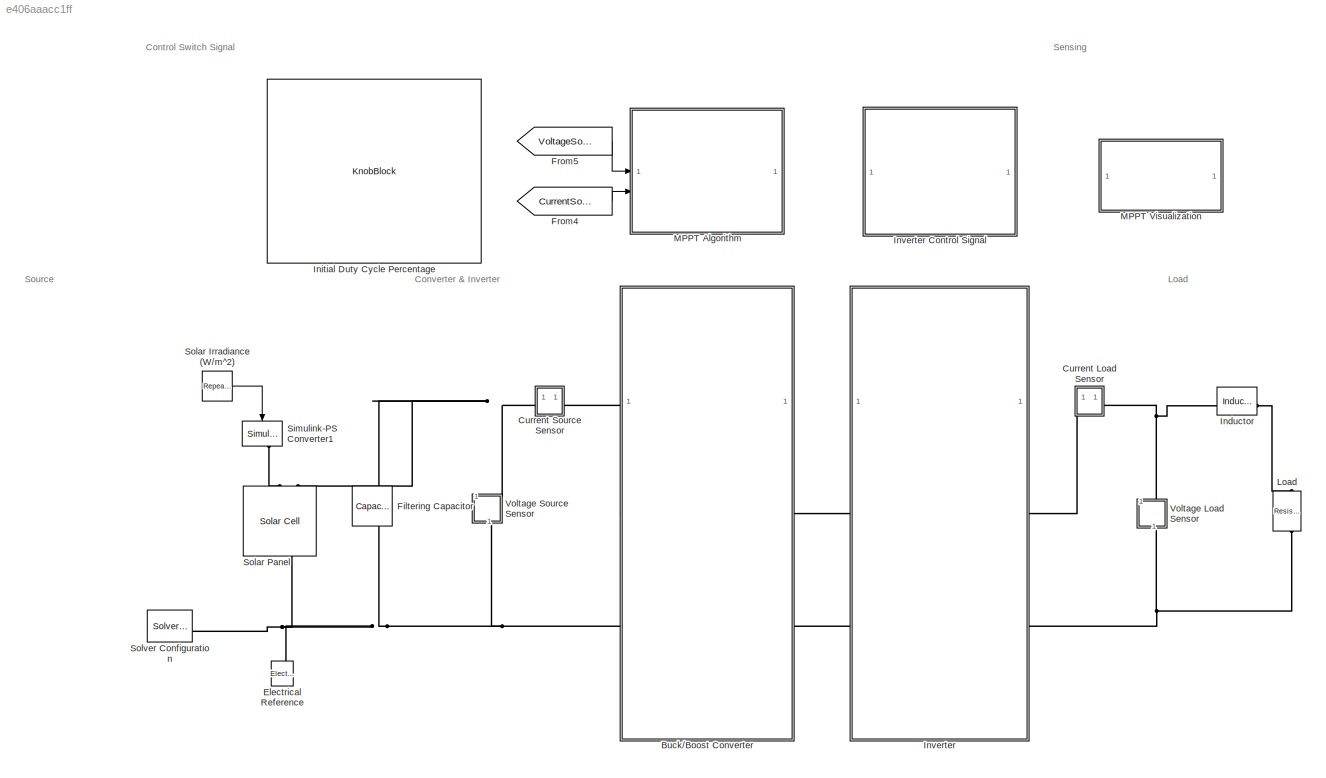
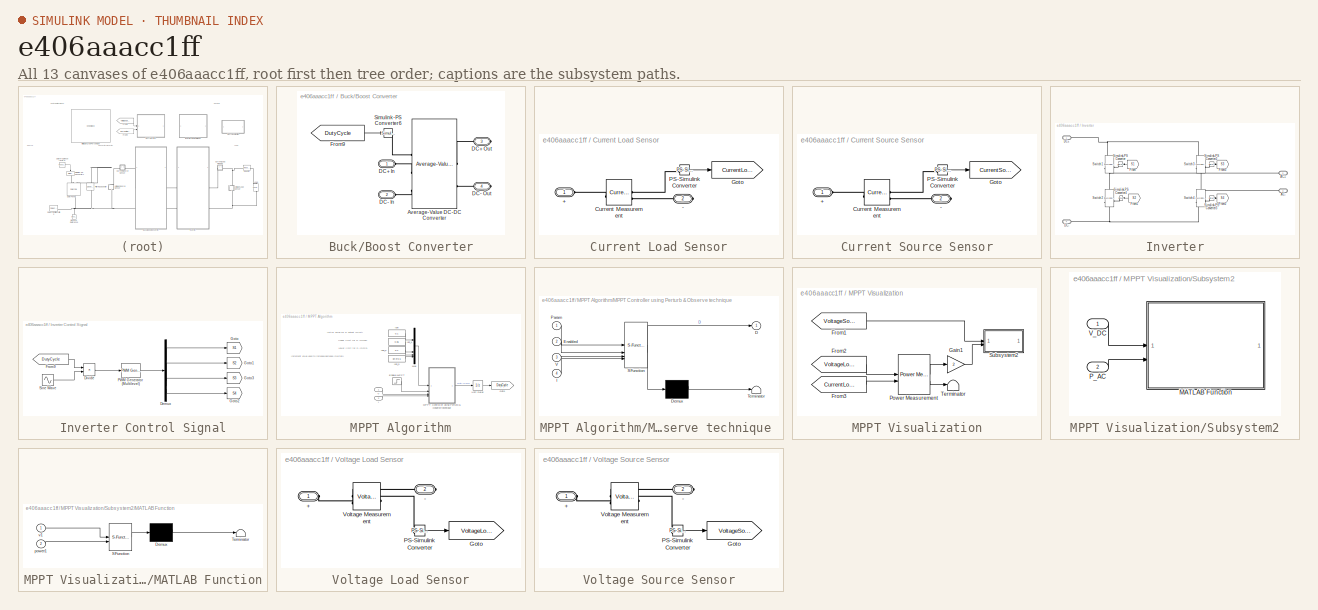
[diagram: thumbnail index - all 13 canvases of the model, root first then tree order]
MODEL slx_e406aaacc1ff
KIND model
CONFIG AbsTol = auto
CONFIG EnableMultiTasking = off
CONFIG FixedStep = auto
CONFIG MaxStep = auto
CONFIG MinStep = auto
CONFIG PreLoadFcn = addpath(genpath('Data'));
CONFIG RelTol = 1e-3
CONFIG SampleTimeConstraint = Unconstrained
CONFIG SolverName = ode23t
CONFIG StartTime = 0.0
CONFIG StopTime = 0.1
BLOCK [SubSystem] Buck//Boost Converter
BLOCK [Reference] Buck//Boost Converter/Average-Value DC-DC Converter  REF=ee_lib/Semiconductors &
Converters/Converters/Average-Value DC-DC
Converter
  SourceBlock = ee_lib/Semiconductors &\nConverters/Converters/Average-Value DC-DC\nConverter
  SourceType = Average-Value DC-DC\nConverter
BLOCK [PMIOPort] Buck//Boost Converter/DC+ In
  Side = Left
BLOCK [PMIOPort] Buck//Boost Converter/DC+ Out
  Port = 3
  Side = Right
BLOCK [PMIOPort] Buck//Boost Converter/DC- In
  Port = 2
  Side = Left
BLOCK [PMIOPort] Buck//Boost Converter/DC- Out
  Port = 4
  Side = Right
BLOCK [From] Buck//Boost Converter/From9
  GotoTag = DutyCycle
  TagVisibility = global
BLOCK [Reference] Buck//Boost Converter/Simulink-PS Converter6  REF=nesl_utility/Simulink-PS
Converter
  SourceBlock = nesl_utility/Simulink-PS\nConverter
  SourceType = Simulink-PS\nConverter
BLOCK [SubSystem] Current Load Sensor
  NameLocation = top
BLOCK [PMIOPort] Current Load Sensor/+
  Side = Left
BLOCK [PMIOPort] Current Load Sensor/-
  Port = 2
  Side = Right
BLOCK [Reference] Current Load Sensor/Current Measurement  REF=fl_lib/Electrical/Electrical Sensors/Current Sensor
  NameLocation = top
  SourceBlock = fl_lib/Electrical/Electrical Sensors/Current Sensor
  SourceType = Current Sensor
BLOCK [Goto] Current Load Sensor/Goto
  GotoTag = CurrentLoad
  TagVisibility = global
BLOCK [Reference] Current Load Sensor/PS-Simulink Converter  REF=nesl_utility/PS-Simulink
Converter
  SourceBlock = nesl_utility/PS-Simulink\nConverter
  SourceType = PS-Simulink\nConverter
BLOCK [SubSystem] Current Source Sensor
  NameLocation = top
BLOCK [PMIOPort] Current Source Sensor/+
  Side = Left
BLOCK [PMIOPort] Current Source Sensor/-
  Port = 2
  Side = Right
BLOCK [Reference] Current Source Sensor/Current Measurement  REF=fl_lib/Electrical/Electrical Sensors/Current Sensor
  NameLocation = top
  SourceBlock = fl_lib/Electrical/Electrical Sensors/Current Sensor
  SourceType = Current Sensor
BLOCK [Goto] Current Source Sensor/Goto
  GotoTag = CurrentSource
  TagVisibility = global
BLOCK [Reference] Current Source Sensor/PS-Simulink Converter  REF=nesl_utility/PS-Simulink
Converter
  SourceBlock = nesl_utility/PS-Simulink\nConverter
  SourceType = PS-Simulink\nConverter
BLOCK [Reference] Electrical Reference  REF=fl_lib/Electrical/Electrical Elements/Electrical Reference
  NameLocation = left
  SourceBlock = fl_lib/Electrical/Electrical Elements/Electrical Reference
  SourceType = Electrical Reference
BLOCK [Reference] Filtering Capacitor  REF=fl_lib/Electrical/Electrical Elements/Capacitor
  NameLocation = right
  SourceBlock = fl_lib/Electrical/Electrical Elements/Capacitor
  SourceType = Capacitor
BLOCK [From] From4
  GotoTag = CurrentSource
  TagVisibility = global
BLOCK [From] From5
  GotoTag = VoltageSource
  TagVisibility = global
BLOCK [Reference] Inductor  REF=fl_lib/Electrical/Electrical Elements/Inductor
  NameLocation = top
  SourceBlock = fl_lib/Electrical/Electrical Elements/Inductor
  SourceType = Inductor
BLOCK [KnobBlock] Initial Duty Cycle Percentage
  LabelPosition = Hide
  ScaleMax = 0.85
  ScaleMin = 0.1
  TickInterval = 0.05
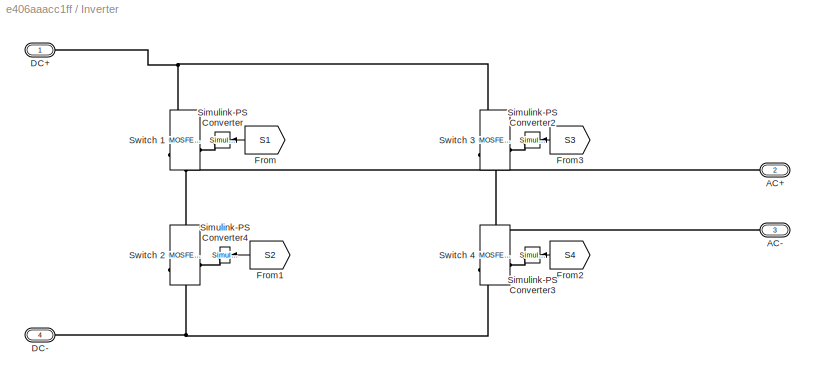
BLOCK [SubSystem] Inverter
BLOCK [SubSystem] Inverter Control Signal
BLOCK [Demux] Inverter Control Signal/Demux
BLOCK [Product] Inverter Control Signal/Divide
  Inputs = **
BLOCK [From] Inverter Control Signal/From9
  GotoTag = DutyCycle
  TagVisibility = global
BLOCK [Goto] Inverter Control Signal/Goto
  GotoTag = S1
  TagVisibility = global
BLOCK [Goto] Inverter Control Signal/Goto1
  GotoTag = S2
  TagVisibility = global
BLOCK [Goto] Inverter Control Signal/Goto2
  GotoTag = S4
  TagVisibility = global
BLOCK [Goto] Inverter Control Signal/Goto3
  GotoTag = S3
  TagVisibility = global
BLOCK [Reference] Inverter Control Signal/PWM Generator (Multilevel)  REF=eePwmGeneratorMultilevel/PWM Generator
(Multilevel)
  LibrarySourceBlock = ee_sl_lib/Pulse Width\nModulation/PWM Generator\n(Multilevel)
  SourceBlock = eePwmGeneratorMultilevel/PWM Generator\n(Multilevel)
  SourceType = PWM Generator (Multilevel)
BLOCK [Sin] Inverter Control Signal/Sine Wave
  Frequency = 60*2*pi
  SampleTime = 0
BLOCK [PMIOPort] Inverter/AC+
  Port = 2
  Side = Right
BLOCK [PMIOPort] Inverter/AC-
  Port = 3
  Side = Right
BLOCK [PMIOPort] Inverter/DC+
  Side = Left
BLOCK [PMIOPort] Inverter/DC-
  Port = 4
  Side = Left
BLOCK [From] Inverter/From
  GotoTag = S1
  TagVisibility = global
BLOCK [From] Inverter/From1
  GotoTag = S2
  TagVisibility = global
BLOCK [From] Inverter/From2
  GotoTag = S4
  TagVisibility = global
BLOCK [From] Inverter/From3
  GotoTag = S3
  TagVisibility = global
BLOCK [Reference] Inverter/Simulink-PS Converter  REF=nesl_utility/Simulink-PS
Converter
  NameLocation = top
  SourceBlock = nesl_utility/Simulink-PS\nConverter
  SourceType = Simulink-PS\nConverter
BLOCK [Reference] Inverter/Simulink-PS Converter2  REF=nesl_utility/Simulink-PS
Converter
  SourceBlock = nesl_utility/Simulink-PS\nConverter
  SourceType = Simulink-PS\nConverter
BLOCK [Reference] Inverter/Simulink-PS Converter3  REF=nesl_utility/Simulink-PS
Converter
  NameLocation = top
  SourceBlock = nesl_utility/Simulink-PS\nConverter
  SourceType = Simulink-PS\nConverter
BLOCK [Reference] Inverter/Simulink-PS Converter4  REF=nesl_utility/Simulink-PS
Converter
  NameLocation = top
  SourceBlock = nesl_utility/Simulink-PS\nConverter
  SourceType = Simulink-PS\nConverter
BLOCK [Reference] Inverter/Switch 1  REF=ee_lib/Semiconductors &
Converters/MOSFET
(Ideal,
Switching)
  NameLocation = left
  SourceBlock = ee_lib/Semiconductors &\nConverters/MOSFET\n(Ideal,\nSwitching)
  SourceType = MOSFET\n(Ideal,\nSwitching)
BLOCK [Reference] Inverter/Switch 2  REF=ee_lib/Semiconductors &
Converters/MOSFET
(Ideal,
Switching)
  NameLocation = left
  SourceBlock = ee_lib/Semiconductors &\nConverters/MOSFET\n(Ideal,\nSwitching)
  SourceType = MOSFET\n(Ideal,\nSwitching)
BLOCK [Reference] Inverter/Switch 3  REF=ee_lib/Semiconductors &
Converters/MOSFET
(Ideal,
Switching)
  NameLocation = left
  SourceBlock = ee_lib/Semiconductors &\nConverters/MOSFET\n(Ideal,\nSwitching)
  SourceType = MOSFET\n(Ideal,\nSwitching)
BLOCK [Reference] Inverter/Switch 4  REF=ee_lib/Semiconductors &
Converters/MOSFET
(Ideal,
Switching)
  NameLocation = left
  SourceBlock = ee_lib/Semiconductors &\nConverters/MOSFET\n(Ideal,\nSwitching)
  SourceType = MOSFET\n(Ideal,\nSwitching)
BLOCK [Reference] Load  REF=fl_lib/Electrical/Electrical Elements/Resistor
  NameLocation = right
  SourceBlock = fl_lib/Electrical/Electrical Elements/Resistor
  SourceType = Resistor
BLOCK [SubSystem] MPPT Algorithm
BLOCK [Step] MPPT Algorithm/Enable MPPT
  NameLocation = top
  SampleTime = 0
  Time = 0.01
BLOCK [Goto] MPPT Algorithm/Goto
  GotoTag = DutyCycle
  TagVisibility = global
BLOCK [Inport] MPPT Algorithm/I
  Port = 2
BLOCK [Constant] MPPT Algorithm/Iph_1
  Value = 0.85
BLOCK [Constant] MPPT Algorithm/Iph_2
  Value = 0.1
BLOCK [Constant] MPPT Algorithm/Iph_3
  Value = 3e-3*0.5
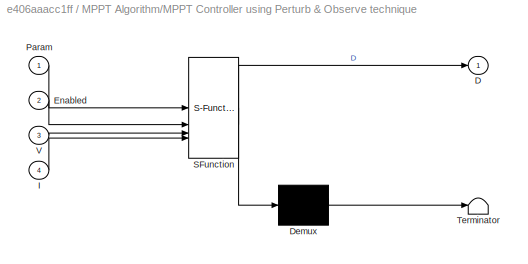
BLOCK [SubSystem] MPPT Algorithm/MPPT Controller using Perturb & Observe technique 
  ErrorFcn = Stateflow.Translate.translate
  NameLocation = top
  PermitHierarchicalResolution = ExplicitOnly
  SFBlockType = MATLAB Function
  SystemSampleTime = Ts
  TreatAsGroupedWhenPropagatingVariantConditions = off
BLOCK [Demux] MPPT Algorithm/MPPT Controller using Perturb & Observe technique / Demux 
  Outputs = 1
BLOCK [S-Function] MPPT Algorithm/MPPT Controller using Perturb & Observe technique / SFunction 
  EnableBusSupport = on
  FunctionName = sf_sfun
  PortCounts = [4 2]
  SFcnIsStateOwnerBlock = off
  SFunctionDeploymentMode = off
  Tag = Stateflow S-Function 1
BLOCK [Terminator] MPPT Algorithm/MPPT Controller using Perturb & Observe technique / Terminator 
BLOCK [Outport] MPPT Algorithm/MPPT Controller using Perturb & Observe technique /D
  VectorParamsAs1DForOutWhenUnconnected = off
BLOCK [Inport] MPPT Algorithm/MPPT Controller using Perturb & Observe technique /Enabled
  Port = 2
BLOCK [Inport] MPPT Algorithm/MPPT Controller using Perturb & Observe technique /I
  Port = 4
BLOCK [Inport] MPPT Algorithm/MPPT Controller using Perturb & Observe technique /Param
BLOCK [Inport] MPPT Algorithm/MPPT Controller using Perturb & Observe technique /V
  Port = 3
BLOCK [Mux] MPPT Algorithm/Mux
  DisplayOption = bar
BLOCK [UnitDelay] MPPT Algorithm/Unit Delay
  HasFrameUpgradeWarning = on
  InitialCondition = 0.5
  SampleTime = -1
BLOCK [Inport] MPPT Algorithm/V
BLOCK [Constant] MPPT Algorithm/lph
  Value = 0.1
BLOCK [SubSystem] MPPT Visualization
BLOCK [From] MPPT Visualization/From1
  GotoTag = VoltageSource
  TagVisibility = global
BLOCK [From] MPPT Visualization/From2
  GotoTag = VoltageLoad
  TagVisibility = global
BLOCK [From] MPPT Visualization/From3
  GotoTag = CurrentLoad
  TagVisibility = global
BLOCK [Gain] MPPT Visualization/Gain1
  Gain = 2
BLOCK [Reference] MPPT Visualization/Power Measurement  REF=eePowerMeasurement/Power
Measurement
  LibrarySourceBlock = ee_sl_lib/Measurements/Power\nMeasurement
  SourceBlock = eePowerMeasurement/Power\nMeasurement
  SourceType = Power Measurement
BLOCK [SubSystem] MPPT Visualization/Subsystem2
BLOCK [SubSystem] MPPT Visualization/Subsystem2/MATLAB Function
  ErrorFcn = Stateflow.Translate.translate
  PermitHierarchicalResolution = ExplicitOnly
  SFBlockType = MATLAB Function
  SystemSampleTime = Tanim
  TreatAsAtomicUnit = on
BLOCK [Demux] MPPT Visualization/Subsystem2/MATLAB Function/ Demux 
  Outputs = 1
BLOCK [S-Function] MPPT Visualization/Subsystem2/MATLAB Function/ SFunction 
  EnableBusSupport = on
  FunctionName = sf_sfun
  PortCounts = [2 1]
  SFcnIsStateOwnerBlock = off
  SFunctionDeploymentMode = off
  Tag = Stateflow S-Function 2
BLOCK [Terminator] MPPT Visualization/Subsystem2/MATLAB Function/ Terminator 
BLOCK [Inport] MPPT Visualization/Subsystem2/MATLAB Function/power1
  Port = 2
BLOCK [Inport] MPPT Visualization/Subsystem2/MATLAB Function/v1
BLOCK [Inport] MPPT Visualization/Subsystem2/P_AC
  Port = 2
BLOCK [Inport] MPPT Visualization/Subsystem2/V_DC
  NameLocation = top
BLOCK [Terminator] MPPT Visualization/Terminator
BLOCK [Reference] Simulink-PS Converter1  REF=nesl_utility/Simulink-PS
Converter
  NameLocation = left
  SourceBlock = nesl_utility/Simulink-PS\nConverter
  SourceType = Simulink-PS\nConverter
BLOCK [Reference] Solar Irradiance (W//m^2)  REF=simulink/Sources/Repeating
Sequence
Interpolated
  NameLocation = left
  SourceBlock = simulink/Sources/Repeating\nSequence\nInterpolated
  SourceType = Repeating Sequence Interpolated
BLOCK [Reference] Solar Panel  REF=ee_lib/Sources/Solar Cell
  AttributesFormatString = Amerisolar:AS_6M30_HC_320W
  NameLocation = left
  SourceBlock = ee_lib/Sources/Solar Cell
  SourceType = Solar Cell
  Tag = {'toolbox/physmod/elec/library/m/ee_lib_parts';'Sources/Solar_Cell/Amerisolar/AS_6M30_HC_320W.xml'}
BLOCK [Reference] Solver Configuration  REF=nesl_utility/Solver
Configuration
  SourceBlock = nesl_utility/Solver\nConfiguration
  SourceType = Solver\nConfiguration
BLOCK [SubSystem] Voltage Load Sensor
  NameLocation = left
BLOCK [PMIOPort] Voltage Load Sensor/+
  Side = Left
BLOCK [PMIOPort] Voltage Load Sensor/-
  Port = 2
  Side = Right
BLOCK [Goto] Voltage Load Sensor/Goto
  GotoTag = VoltageLoad
  TagVisibility = global
BLOCK [Reference] Voltage Load Sensor/PS-Simulink Converter  REF=nesl_utility/PS-Simulink
Converter
  SourceBlock = nesl_utility/PS-Simulink\nConverter
  SourceType = PS-Simulink\nConverter
BLOCK [Reference] Voltage Load Sensor/Voltage Measurement  REF=fl_lib/Electrical/Electrical Sensors/Voltage Sensor
  NameLocation = top
  SourceBlock = fl_lib/Electrical/Electrical Sensors/Voltage Sensor
  SourceType = Voltage Sensor
BLOCK [SubSystem] Voltage Source Sensor
  NameLocation = right
BLOCK [PMIOPort] Voltage Source Sensor/+
  Side = Left
BLOCK [PMIOPort] Voltage Source Sensor/-
  Port = 2
  Side = Right
BLOCK [Goto] Voltage Source Sensor/Goto
  GotoTag = VoltageSource
  TagVisibility = global
BLOCK [Reference] Voltage Source Sensor/PS-Simulink Converter  REF=nesl_utility/PS-Simulink
Converter
  SourceBlock = nesl_utility/PS-Simulink\nConverter
  SourceType = PS-Simulink\nConverter
BLOCK [Reference] Voltage Source Sensor/Voltage Measurement  REF=fl_lib/Electrical/Electrical Sensors/Voltage Sensor
  NameLocation = top
  SourceBlock = fl_lib/Electrical/Electrical Sensors/Voltage Sensor
  SourceType = Voltage Sensor
ANNOTATION (root): Control Switch Signal
ANNOTATION (root): Converter & Inverter
ANNOTATION (root): Load
ANNOTATION (root): Sensing
ANNOTATION (root): Source
ANNOTATION MPPT Algorithm: Increment value used to increase/decrease (DeltaD)
ANNOTATION MPPT Algorithm: Initial value for D output (Dinit)
ANNOTATION MPPT Algorithm: Lower limit for D (Dmin)
ANNOTATION MPPT Algorithm: Upper limit for D (Dmax)
LINE Buck//Boost Converter/From9:1 -> Buck//Boost Converter/Simulink-PS Converter6:1
LINE Current Load Sensor/PS-Simulink Converter:1 -> Current Load Sensor/Goto:1
LINE Current Source Sensor/PS-Simulink Converter:1 -> Current Source Sensor/Goto:1
LINE From4:1 -> MPPT Algorithm:2
LINE From5:1 -> MPPT Algorithm:1
LINE Inverter Control Signal/Demux:1 -> Inverter Control Signal/Goto:1
LINE Inverter Control Signal/Demux:2 -> Inverter Control Signal/Goto1:1
LINE Inverter Control Signal/Demux:3 -> Inverter Control Signal/Goto3:1
LINE Inverter Control Signal/Demux:4 -> Inverter Control Signal/Goto2:1
LINE Inverter Control Signal/Divide:1 -> Inverter Control Signal/PWM Generator (Multilevel):1
LINE Inverter Control Signal/From9:1 -> Inverter Control Signal/Divide:1
LINE Inverter Control Signal/PWM Generator (Multilevel):1 -> Inverter Control Signal/Demux:1
LINE Inverter Control Signal/Sine Wave:1 -> Inverter Control Signal/Divide:2
LINE Inverter/From1:1 -> Inverter/Simulink-PS Converter4:1
LINE Inverter/From2:1 -> Inverter/Simulink-PS Converter3:1
LINE Inverter/From3:1 -> Inverter/Simulink-PS Converter2:1
LINE Inverter/From:1 -> Inverter/Simulink-PS Converter:1
LINE MPPT Algorithm/Enable MPPT:1 -> MPPT Algorithm/MPPT Controller using Perturb & Observe technique :2
LINE MPPT Algorithm/I:1 -> MPPT Algorithm/MPPT Controller using Perturb & Observe technique :4
LINE MPPT Algorithm/Iph_1:1 -> MPPT Algorithm/Mux:2
LINE MPPT Algorithm/Iph_2:1 -> MPPT Algorithm/Mux:3
LINE MPPT Algorithm/Iph_3:1 -> MPPT Algorithm/Mux:4
LINE MPPT Algorithm/MPPT Controller using Perturb & Observe technique :1 -> MPPT Algorithm/Unit Delay:1
LINE MPPT Algorithm/Mux:1 -> MPPT Algorithm/MPPT Controller using Perturb & Observe technique :1
LINE MPPT Algorithm/Unit Delay:1 -> MPPT Algorithm/Goto:1
LINE MPPT Algorithm/V:1 -> MPPT Algorithm/MPPT Controller using Perturb & Observe technique :3
LINE MPPT Algorithm/lph:1 -> MPPT Algorithm/Mux:1
LINE MPPT Visualization/From1:1 -> MPPT Visualization/Subsystem2:1
LINE MPPT Visualization/From2:1 -> MPPT Visualization/Power Measurement:1
LINE MPPT Visualization/From3:1 -> MPPT Visualization/Power Measurement:2
LINE MPPT Visualization/Gain1:1 -> MPPT Visualization/Subsystem2:2
LINE MPPT Visualization/Power Measurement:1 -> MPPT Visualization/Gain1:1
LINE MPPT Visualization/Power Measurement:2 -> MPPT Visualization/Terminator:1
LINE MPPT Visualization/Subsystem2/P_AC:1 -> MPPT Visualization/Subsystem2/MATLAB Function:2
LINE MPPT Visualization/Subsystem2/V_DC:1 -> MPPT Visualization/Subsystem2/MATLAB Function:1
LINE Solar Irradiance (W//m^2):1 -> Simulink-PS Converter1:1
LINE Voltage Load Sensor/PS-Simulink Converter:1 -> Voltage Load Sensor/Goto:1
LINE Voltage Source Sensor/PS-Simulink Converter:1 -> Voltage Source Sensor/Goto:1
PLINE Buck//Boost Converter/Average-Value DC-DC Converter:LConn1 -- Buck//Boost Converter/Simulink-PS Converter6:RConn1
PLINE Buck//Boost Converter/Average-Value DC-DC Converter:LConn2 -- Buck//Boost Converter/DC+ In:RConn1
PLINE Buck//Boost Converter/Average-Value DC-DC Converter:LConn3 -- Buck//Boost Converter/DC- In:RConn1
PLINE Buck//Boost Converter/Average-Value DC-DC Converter:RConn1 -- Buck//Boost Converter/DC+ Out:RConn1
PLINE Buck//Boost Converter/Average-Value DC-DC Converter:RConn2 -- Buck//Boost Converter/DC- Out:RConn1
PLINE Buck//Boost Converter:LConn1 -- Current Source Sensor:RConn1
PNET net1: Buck//Boost Converter:LConn2 -- Electrical Reference:LConn1 -- Filtering Capacitor:RConn1 -- Solar Panel:RConn1 -- Solver Configuration:RConn1 -- Voltage Source Sensor:RConn1
PLINE Buck//Boost Converter:RConn1 -- Inverter:LConn1
PLINE Buck//Boost Converter:RConn2 -- Inverter:LConn2
PLINE Current Load Sensor/+:RConn1 -- Current Load Sensor/Current Measurement:LConn1
PLINE Current Load Sensor/-:RConn1 -- Current Load Sensor/Current Measurement:RConn2
PLINE Current Load Sensor/Current Measurement:RConn1 -- Current Load Sensor/PS-Simulink Converter:LConn1
PLINE Current Load Sensor:LConn1 -- Inverter:RConn1
PNET net2: Current Load Sensor:RConn1 -- Inductor:LConn1 -- Voltage Load Sensor:LConn1
PLINE Current Source Sensor/+:RConn1 -- Current Source Sensor/Current Measurement:LConn1
PLINE Current Source Sensor/-:RConn1 -- Current Source Sensor/Current Measurement:RConn2
PLINE Current Source Sensor/Current Measurement:RConn1 -- Current Source Sensor/PS-Simulink Converter:LConn1
PNET net3: Current Source Sensor:LConn1 -- Filtering Capacitor:LConn1 -- Solar Panel:LConn2 -- Voltage Source Sensor:LConn1
PLINE Inductor:RConn1 -- Load:LConn1
PNET net4: Inverter/AC+:RConn1 -- Inverter/Switch 1:RConn2 -- Inverter/Switch 2:RConn1
PNET net5: Inverter/AC-:RConn1 -- Inverter/Switch 3:RConn2 -- Inverter/Switch 4:RConn1
PNET net6: Inverter/DC+:RConn1 -- Inverter/Switch 1:RConn1 -- Inverter/Switch 3:RConn1
PNET net7: Inverter/DC-:RConn1 -- Inverter/Switch 2:RConn2 -- Inverter/Switch 4:RConn2
PLINE Inverter/Simulink-PS Converter2:RConn1 -- Inverter/Switch 3:LConn1
PLINE Inverter/Simulink-PS Converter3:RConn1 -- Inverter/Switch 4:LConn1
PLINE Inverter/Simulink-PS Converter4:RConn1 -- Inverter/Switch 2:LConn1
PLINE Inverter/Simulink-PS Converter:RConn1 -- Inverter/Switch 1:LConn1
PNET net8: Inverter:RConn2 -- Load:RConn1 -- Voltage Load Sensor:RConn1
PLINE Simulink-PS Converter1:RConn1 -- Solar Panel:LConn1
PLINE Voltage Load Sensor/+:RConn1 -- Voltage Load Sensor/Voltage Measurement:LConn1
PLINE Voltage Load Sensor/-:RConn1 -- Voltage Load Sensor/Voltage Measurement:RConn2
PLINE Voltage Load Sensor/PS-Simulink Converter:LConn1 -- Voltage Load Sensor/Voltage Measurement:RConn1
PLINE Voltage Source Sensor/+:RConn1 -- Voltage Source Sensor/Voltage Measurement:LConn1
PLINE Voltage Source Sensor/-:RConn1 -- Voltage Source Sensor/Voltage Measurement:RConn2
PLINE Voltage Source Sensor/PS-Simulink Converter:LConn1 -- Voltage Source Sensor/Voltage Measurement:RConn1
note: PNET lines group multi-terminal physical nets as a canonical sorted terminal list (undirected conserving connections); 2-terminal nets keep the pairwise PLINE form
CHART MPPT Visualization/Subsystem2/MATLAB Function states=1 transitions=1
  STATE_LABEL 'eML_blk_kernel()'
  STATE_LABEL "SCRIPT:\nfunction powerTracking(v1,power1)\n\n% <copyright redacted>\n\npersistent hf hg1\n\nif isempty(hf)\n    \n    figure(1); clf(1); hold on;\n    \n    [hf,hg1] = plotBackground(v1,power1);\n\n    drawnow\n    \nelse\n    \n    updateAnimation(hg1,v1,power1);\n\n    drawnow\n\nend\n\nend\n\n\nfunction [hf,hg1] = plotBackground(speed1,power1)\n\nhf = figure(1);hold on;box on\nset(hf,'Color','w')\n\n\ny = load...<+910ch>"
CHART MPPT Algorithm/MPPT Controller
using Perturb 
& Observe technique
  states=1 transitions=1
  STATE_LABEL 'eML_blk_kernel()'
  STATE_LABEL 'SCRIPT:\nfunction D  = PandO(Param, Enabled, V, I)\n\n% MPPT controller based on the Perturb & Observe algorithm.\n\n% D output = Duty cycle of the boost converter (value between 0 and 1)\n%\n% Enabled input = 1 to enable the MPPT controller\n% V input = PV array terminal voltage (V)\n% I input = PV array current (A)\n%\n% Param input:\nDinit = Param(1);  %Initial value for D output\nDmax = Param(2);   %Maximu...<+722ch>'
CHART  states=0 transitions=0
CHART  states=0 transitions=0
